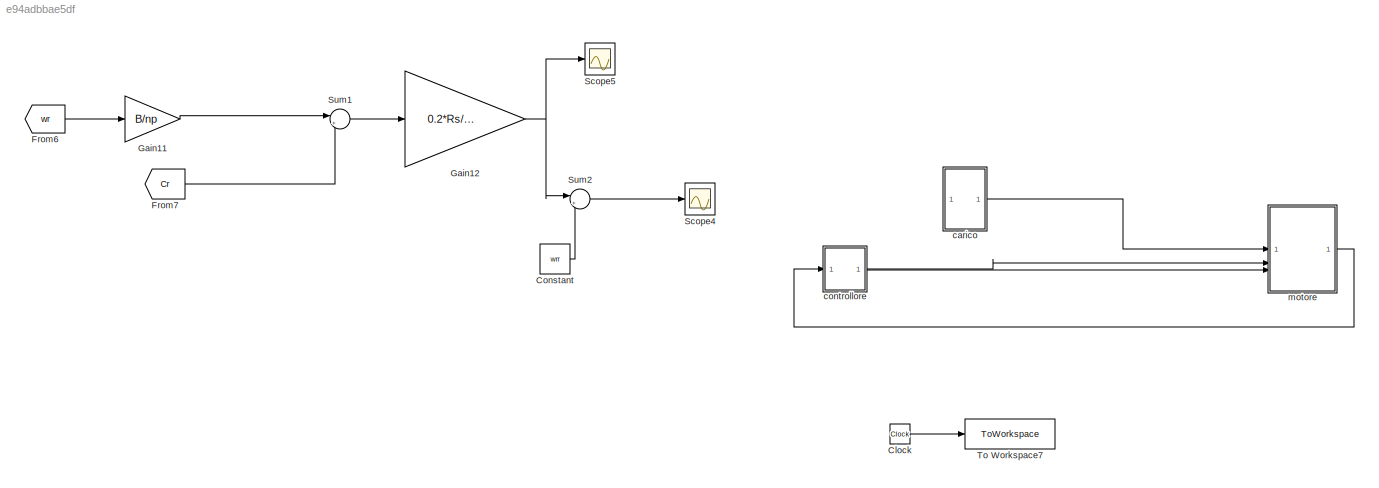
MODEL slx_e94adbbae5df
KIND model
CONFIG AbsTol = auto
CONFIG EnableMultiTasking = off
CONFIG FixedStep = 1e-4
CONFIG MaxStep = auto
CONFIG MinStep = auto
CONFIG RelTol = 1e-3
CONFIG SampleTimeConstraint = Unconstrained
CONFIG SolverName = FixedStepAuto
CONFIG StartTime = 0.0
CONFIG StopTime = 0.1
BLOCK [Clock] Clock
BLOCK [Constant] Constant
  Value = wrr
BLOCK [From] From6
  GotoTag = wr
  TagVisibility = global
BLOCK [From] From7
  GotoTag = Cr
  TagVisibility = global
BLOCK [Gain] Gain11
  Gain = B/np
BLOCK [Gain] Gain12
  Gain = 0.2*Rs/(Kc*PSIPM)
BLOCK [Scope] Scope4
  ActiveDisplayYMaximum = 1266.36927
  ActiveDisplayYMinimum = 1239.82875
  DataLoggingVariableName = ScopeData1
  Floating = off
  GraphicalSettings = {"Style":{"BackgroundColor":[0.12941176470588237,0.12941176470588237,0.12941176470588237],"AxesColor":[0.07058823529411765,0.07058823529411765,0.07058823529411765],"LabelsColor":[0.8509803921568627,0.8509803921568627,0.8509803921568627],"PreserveColors":false,"Visible":[true],"LineStyle":["-"],"LineWidth":[1.5],"BarWidth":[0.9],"LineColor":["auto"],"LineFaceAlpha":[1],"LineEdgeAlpha":[1],"Marker":...<+1963ch>
  MultipleDisplayCache = [{"MaxYLimMag":1266.36927,"MaxYLimReal":1266.36927,"MinYLimMag":1239.82875,"MinYLimReal":1239.82875,"PlotAsMagnitudePhase":false,"ShowGrid":true,"ShowLegend":false,"Title":"%<SignalLabel>","YLabel":""}]
  NumInputPorts = 1
  ScopeFrameLocation = window
  WasSavedAsWebScope = on
  WindowPosition = [488.000000,222.000000,560.000000,420.000000,]
BLOCK [Scope] Scope5
  ActiveDisplayYMaximum = 8.48624
  ActiveDisplayYMinimum = 7.17571
  DataLoggingVariableName = ScopeData2
  Floating = off
  GraphicalSettings = {"Style":{"BackgroundColor":[0.12941176470588237,0.12941176470588237,0.12941176470588237],"AxesColor":[0.07058823529411765,0.07058823529411765,0.07058823529411765],"LabelsColor":[0.8509803921568627,0.8509803921568627,0.8509803921568627],"PreserveColors":false,"Visible":[true],"LineStyle":["-"],"LineWidth":[1.5],"BarWidth":[0.9],"LineColor":["auto"],"LineFaceAlpha":[1],"LineEdgeAlpha":[1],"Marker":...<+1943ch>
  MultipleDisplayCache = [{"MaxYLimMag":8.48624,"MaxYLimReal":8.48624,"MinYLimMag":7.17571,"MinYLimReal":7.17571,"PlotAsMagnitudePhase":false,"ShowGrid":true,"ShowLegend":false,"Title":"%<SignalLabel>","YLabel":""}]
  NumInputPorts = 1
  ScopeFrameLocation = window
  WasSavedAsWebScope = on
  WindowPosition = [488.000000,222.000000,560.000000,420.000000,]
BLOCK [Sum] Sum1
  Inputs = |++
BLOCK [Sum] Sum2
  Inputs = |++
BLOCK [ToWorkspace] To Workspace7
  FixptAsFi = on
  MaxDataPoints = inf
  SampleTime = -1
  SaveFormat = Timeseries
  VariableName = ts
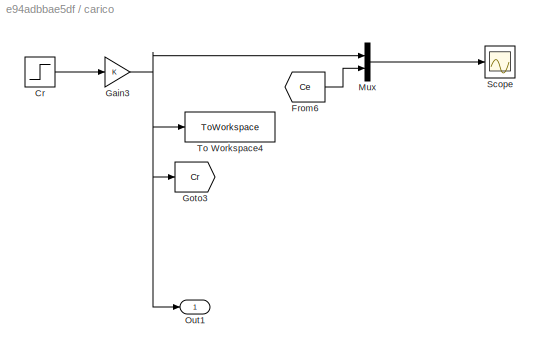
BLOCK [SubSystem] carico
BLOCK [Step] carico/Cr
  After = Crn
  SampleTime = 0
  Time = 0.05
BLOCK [From] carico/From6
  GotoTag = Ce
  TagVisibility = global
BLOCK [Gain] carico/Gain3
BLOCK [Goto] carico/Goto3
  GotoTag = Cr
  TagVisibility = global
BLOCK [Mux] carico/Mux
  DisplayOption = bar
  Inputs = 2
BLOCK [Outport] carico/Out1
BLOCK [Scope] carico/Scope
  ActiveDisplayYMaximum = 10.229860426392403
  ActiveDisplayYMinimum = -4.0916456084062247
  Floating = off
  GraphicalSettings = {"Style":{"BackgroundColor":[0.12941176470588237,0.12941176470588237,0.12941176470588237],"AxesColor":[0.07058823529411765,0.07058823529411765,0.07058823529411765],"LabelsColor":[0.8509803921568627,0.8509803921568627,0.8509803921568627],"PreserveColors":false,"Visible":[true,true],"LineStyle":["-","-"],"LineWidth":[1.5,1.5],"BarWidth":[0.9,0.9],"LineColor":["auto","auto"],"LineFaceAlpha":[1,1],"Li...<+2050ch>
  MultipleDisplayCache = [{"MaxYLimMag":10.229860426392403,"MaxYLimReal":10.229860426392403,"MinYLimMag":0,"MinYLimReal":-4.0916456084062247,"PlotAsMagnitudePhase":false,"ShowGrid":true,"ShowLegend":false,"Title":"%<SignalLabel>","YLabel":""}]
  NumInputPorts = 1
  ScopeFrameLocation = window
  WasSavedAsWebScope = on
  WindowPosition = [488.000000,222.000000,560.000000,420.000000,]
BLOCK [ToWorkspace] carico/To Workspace4
  FixptAsFi = on
  MaxDataPoints = inf
  SampleTime = -1
  SaveFormat = Timeseries
  VariableName = Cr
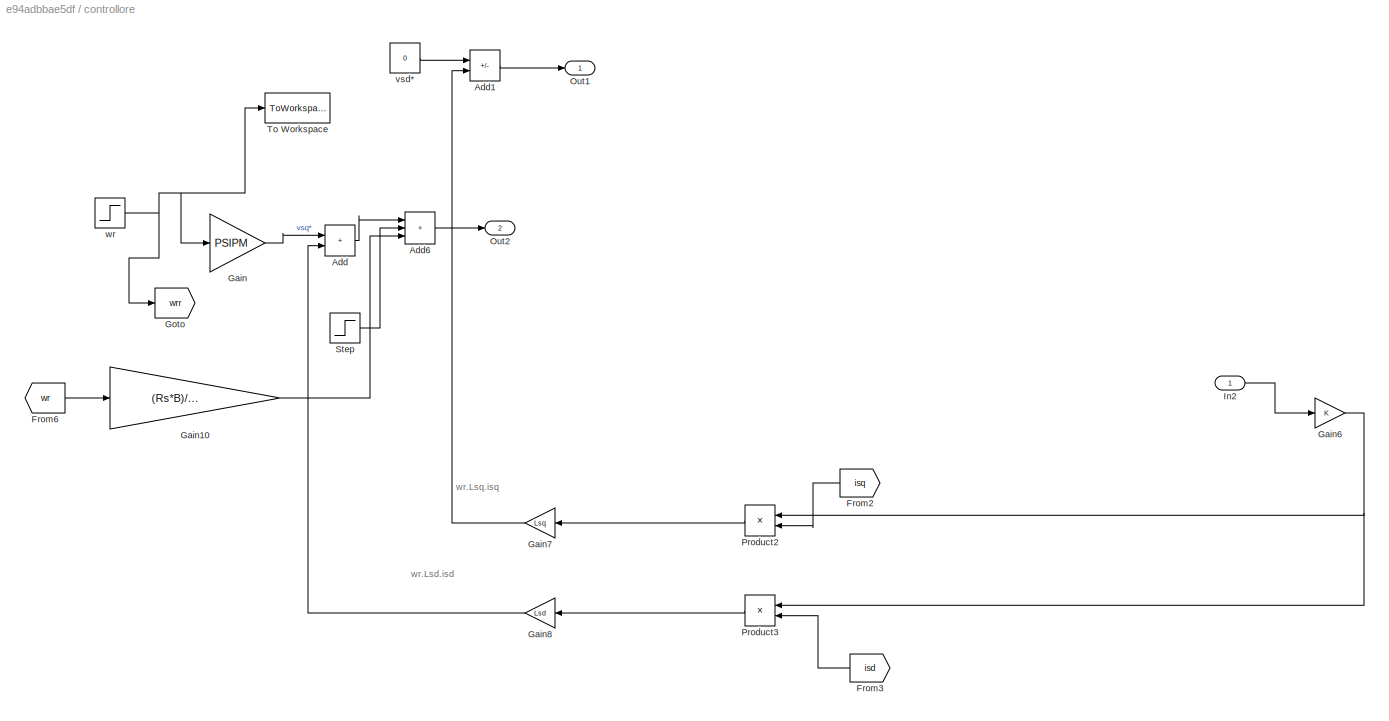
BLOCK [SubSystem] controllore
BLOCK [Sum] controllore/Add
  IconShape = rectangular
BLOCK [Sum] controllore/Add1
  IconShape = rectangular
  Inputs = +-
BLOCK [Sum] controllore/Add6
  IconShape = rectangular
  Inputs = +++
BLOCK [From] controllore/From2
  GotoTag = isq
  NameLocation = top
  TagVisibility = global
BLOCK [From] controllore/From3
  GotoTag = isd
  NameLocation = top
  TagVisibility = global
BLOCK [From] controllore/From6
  GotoTag = wr
  TagVisibility = global
BLOCK [Gain] controllore/Gain
  Gain = PSIPM
BLOCK [Gain] controllore/Gain10
  Gain = (Rs*B)/(np*Kc)
BLOCK [Gain] controllore/Gain6
BLOCK [Gain] controllore/Gain7
  Gain = Lsq
  NameLocation = top
BLOCK [Gain] controllore/Gain8
  Gain = Lsd
  NameLocation = top
BLOCK [Goto] controllore/Goto
  GotoTag = wrr
  TagVisibility = global
BLOCK [Inport] controllore/In2
BLOCK [Outport] controllore/Out1
BLOCK [Outport] controllore/Out2
  Port = 2
BLOCK [Product] controllore/Product2
  NameLocation = top
BLOCK [Product] controllore/Product3
  NameLocation = top
BLOCK [Step] controllore/Step
  After = Rs*Crn/Kc
  SampleTime = 0
  Time = 0.05
BLOCK [ToWorkspace] controllore/To Workspace
  FixptAsFi = on
  MaxDataPoints = inf
  SampleTime = -1
  SaveFormat = Timeseries
  VariableName = wrrif
BLOCK [Constant] controllore/vsd*
  Value = 0
BLOCK [Step] controllore/wr
  After = 1256.6
  SampleTime = 0
  Time = 0
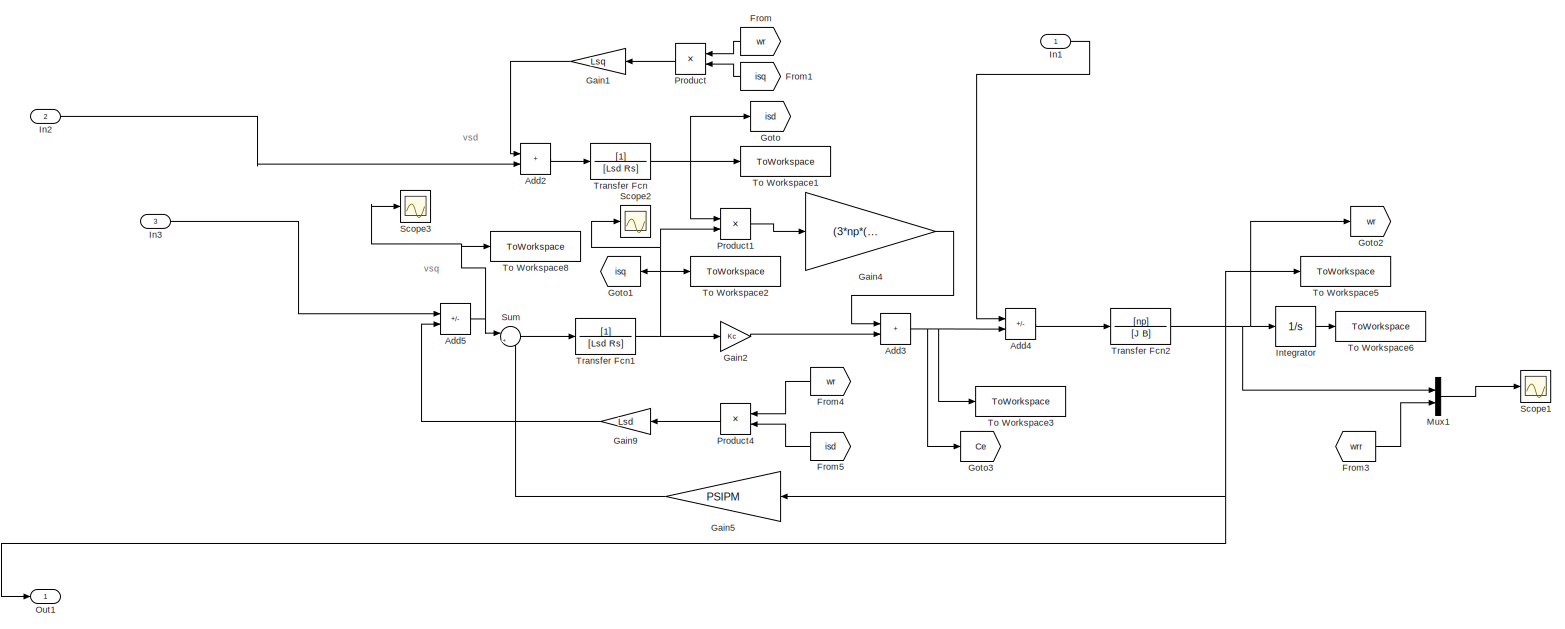
[diagram: motore - part 1/1, most of the canvas]
BLOCK [SubSystem] motore
BLOCK [Sum] motore/Add2
  IconShape = rectangular
BLOCK [Sum] motore/Add3
  IconShape = rectangular
BLOCK [Sum] motore/Add4
  IconShape = rectangular
  Inputs = -+
BLOCK [Sum] motore/Add5
  IconShape = rectangular
  Inputs = +-
BLOCK [From] motore/From
  GotoTag = wr
  NameLocation = top
  TagVisibility = global
BLOCK [From] motore/From1
  GotoTag = isq
  NameLocation = top
  TagVisibility = global
BLOCK [From] motore/From3
  GotoTag = wrr
  TagVisibility = global
BLOCK [From] motore/From4
  GotoTag = wr
  NameLocation = top
  TagVisibility = global
BLOCK [From] motore/From5
  GotoTag = isd
  NameLocation = top
  TagVisibility = global
BLOCK [Gain] motore/Gain1
  Gain = Lsq
  NameLocation = top
BLOCK [Gain] motore/Gain2
  Gain = Kc
BLOCK [Gain] motore/Gain4
  Gain = (3*np*(Lsd-Lsq))/2
BLOCK [Gain] motore/Gain5
  Gain = PSIPM
  NameLocation = top
BLOCK [Gain] motore/Gain9
  Gain = Lsd
  NameLocation = top
BLOCK [Goto] motore/Goto
  GotoTag = isd
  TagVisibility = global
BLOCK [Goto] motore/Goto1
  GotoTag = isq
  NameLocation = top
  TagVisibility = global
BLOCK [Goto] motore/Goto2
  GotoTag = wr
  TagVisibility = global
BLOCK [Goto] motore/Goto3
  GotoTag = Ce
  TagVisibility = global
BLOCK [Inport] motore/In1
BLOCK [Inport] motore/In2
  Port = 2
BLOCK [Inport] motore/In3
  Port = 3
BLOCK [Integrator] motore/Integrator
BLOCK [Mux] motore/Mux1
  DisplayOption = bar
  Inputs = 2
BLOCK [Outport] motore/Out1
BLOCK [Product] motore/Product
  NameLocation = top
BLOCK [Product] motore/Product1
BLOCK [Product] motore/Product4
  NameLocation = top
BLOCK [Scope] motore/Scope1
  ActiveDisplayYMaximum = 1845.53012242856
  ActiveDisplayYMinimum = -205.05890249206215
  DataLoggingVariableName = ScopeData1
  Floating = off
  GraphicalSettings = {"Style":{"BackgroundColor":[0.12941176470588237,0.12941176470588237,0.12941176470588237],"AxesColor":[0.07058823529411765,0.07058823529411765,0.07058823529411765],"LabelsColor":[0.8509803921568627,0.8509803921568627,0.8509803921568627],"PreserveColors":false,"Visible":[true,true],"LineStyle":["-","-"],"LineWidth":[1.5,1.5],"BarWidth":[0.9,0.9],"LineColor":["auto","auto"],"LineFaceAlpha":[1,1],"Li...<+2110ch>
  MultipleDisplayCache = [{"MaxYLimMag":1845.53012242856,"MaxYLimReal":1845.53012242856,"MinYLimMag":0,"MinYLimReal":-205.05890249206215,"PlotAsMagnitudePhase":false,"ShowGrid":true,"ShowLegend":false,"Title":"%<SignalLabel>","YLabel":""}]
  NumInputPorts = 1
  ScopeFrameLocation = window
  Visible = on
  WasSavedAsWebScope = on
  WindowPosition = [165.000000,250.000000,720.000000,482.000000,]
BLOCK [Scope] motore/Scope2
  ActiveDisplayYMaximum = 37.90229
  ActiveDisplayYMinimum = -15.15118
  DataLoggingVariableName = ScopeData1
  Floating = off
  GraphicalSettings = {"GraphicalSettings":{"LegacySettings":true,"Style":{"Style":{"AxesColor":"[0 0 0]","ChannelNames":[""],"ColorOrder":"[1 0.909803921568627 0.392156862745098;0.149019607843137 0.549019607843137 0.866666666666667;0.96078431372549 0.466666666666667 0.16078431372549;0.286274509803922 0.858823529411765 0.250980392156863;0.752941176470588 0.36078431372549 0.984313725490196;0.423529411764706 0.9568627450...<+467ch>
  MultipleDisplayCache = [{"MaxYLimMag":37.90229,"MaxYLimReal":37.90229,"MinYLimMag":0,"MinYLimReal":-15.15118,"PlotAsMagnitudePhase":false,"ShowGrid":true,"ShowLegend":false,"Title":"%<SignalLabel>","YLabel":""}]
  NumInputPorts = 1
  WasSavedAsWebScope = on
BLOCK [Scope] motore/Scope3
  ActiveDisplayYMaximum = 117.12449
  ActiveDisplayYMinimum = 112.64617
  DataLoggingVariableName = ScopeData2
  Floating = off
  GraphicalSettings = {"GraphicalSettings":{"LegacySettings":true,"Style":{"Style":{"AxesColor":"[0 0 0]","ChannelNames":[""],"ColorOrder":"[1 0.909803921568627 0.392156862745098;0.149019607843137 0.549019607843137 0.866666666666667;0.96078431372549 0.466666666666667 0.16078431372549;0.286274509803922 0.858823529411765 0.250980392156863;0.752941176470588 0.36078431372549 0.984313725490196;0.423529411764706 0.9568627450...<+432ch>
  MultipleDisplayCache = [{"MaxYLimMag":117.12449,"MaxYLimReal":117.12449,"MinYLimMag":112.64617,"MinYLimReal":112.64617,"PlotAsMagnitudePhase":false,"ShowGrid":true,"ShowLegend":false,"Title":"%<SignalLabel>","YLabel":""}]
  NumInputPorts = 1
  WasSavedAsWebScope = on
BLOCK [Sum] motore/Sum
  Inputs = |+-
BLOCK [ToWorkspace] motore/To Workspace1
  FixptAsFi = on
  MaxDataPoints = inf
  SampleTime = -1
  SaveFormat = Timeseries
  VariableName = isd
BLOCK [ToWorkspace] motore/To Workspace2
  FixptAsFi = on
  MaxDataPoints = inf
  SampleTime = -1
  SaveFormat = Timeseries
  VariableName = isq
BLOCK [ToWorkspace] motore/To Workspace3
  FixptAsFi = on
  MaxDataPoints = inf
  SampleTime = -1
  SaveFormat = Timeseries
  VariableName = Ce
BLOCK [ToWorkspace] motore/To Workspace5
  FixptAsFi = on
  MaxDataPoints = inf
  SampleTime = -1
  SaveFormat = Timeseries
  VariableName = wr
BLOCK [ToWorkspace] motore/To Workspace6
  FixptAsFi = on
  MaxDataPoints = inf
  SampleTime = -1
  SaveFormat = Timeseries
  VariableName = tetar
BLOCK [ToWorkspace] motore/To Workspace8
  FixptAsFi = on
  MaxDataPoints = inf
  SampleTime = -1
  SaveFormat = Timeseries
  VariableName = vsq1
BLOCK [TransferFcn] motore/Transfer Fcn
  Denominator = [Lsd Rs]
BLOCK [TransferFcn] motore/Transfer Fcn1
  Denominator = [Lsd Rs]
BLOCK [TransferFcn] motore/Transfer Fcn2
  Denominator = [J B]
  Numerator = [np]
ANNOTATION controllore: wr.Lsd.isd
ANNOTATION controllore: wr.Lsq.isq
ANNOTATION motore: vsd
ANNOTATION motore: vsq
LINE Clock:1 -> To Workspace7:1
LINE Constant:1 -> Sum2:2
LINE From6:1 -> Gain11:1
LINE From7:1 -> Sum1:2
LINE Gain11:1 -> Sum1:1
NET Gain12:1 -> Scope5:1, Sum2:1
LINE Sum1:1 -> Gain12:1
LINE Sum2:1 -> Scope4:1
LINE carico/Cr:1 -> carico/Gain3:1
LINE carico/From6:1 -> carico/Mux:2
NET carico/Gain3:1 -> carico/Goto3:1, carico/Mux:1, carico/Out1:1, carico/To Workspace4:1
LINE carico/Mux:1 -> carico/Scope:1
LINE carico:1 -> motore:1
LINE controllore/Add1:1 -> controllore/Out1:1
LINE controllore/Add6:1 -> controllore/Out2:1
LINE controllore/Add:1 -> controllore/Add6:1
LINE controllore/From2:1 -> controllore/Product2:2
LINE controllore/From3:1 -> controllore/Product3:2
LINE controllore/From6:1 -> controllore/Gain10:1
LINE controllore/Gain10:1 -> controllore/Add6:3
NET controllore/Gain6:1 -> controllore/Product2:1, controllore/Product3:1
LINE controllore/Gain7:1 -> controllore/Add1:2
LINE controllore/Gain8:1 -> controllore/Add:2
LINE controllore/Gain:1 -> controllore/Add:1
LINE controllore/In2:1 -> controllore/Gain6:1
LINE controllore/Product2:1 -> controllore/Gain7:1
LINE controllore/Product3:1 -> controllore/Gain8:1
LINE controllore/Step:1 -> controllore/Add6:2
LINE controllore/vsd*:1 -> controllore/Add1:1
NET controllore/wr:1 -> controllore/Gain:1, controllore/Goto:1, controllore/To Workspace:1
LINE controllore:1 -> motore:2
LINE controllore:2 -> motore:3
LINE motore/Add2:1 -> motore/Transfer Fcn:1
NET motore/Add3:1 -> motore/Add4:2, motore/Goto3:1, motore/To Workspace3:1
LINE motore/Add4:1 -> motore/Transfer Fcn2:1
NET motore/Add5:1 -> motore/Scope3:1, motore/Sum:1, motore/To Workspace8:1
LINE motore/From1:1 -> motore/Product:2
LINE motore/From3:1 -> motore/Mux1:2
LINE motore/From4:1 -> motore/Product4:1
LINE motore/From5:1 -> motore/Product4:2
LINE motore/From:1 -> motore/Product:1
LINE motore/Gain1:1 -> motore/Add2:1
LINE motore/Gain2:1 -> motore/Add3:2
LINE motore/Gain4:1 -> motore/Add3:1
LINE motore/Gain5:1 -> motore/Sum:2
LINE motore/Gain9:1 -> motore/Add5:2
LINE motore/In1:1 -> motore/Add4:1
LINE motore/In2:1 -> motore/Add2:2
LINE motore/In3:1 -> motore/Add5:1
LINE motore/Integrator:1 -> motore/To Workspace6:1
LINE motore/Mux1:1 -> motore/Scope1:1
LINE motore/Product1:1 -> motore/Gain4:1
LINE motore/Product4:1 -> motore/Gain9:1
LINE motore/Product:1 -> motore/Gain1:1
LINE motore/Sum:1 -> motore/Transfer Fcn1:1
NET motore/Transfer Fcn1:1 -> motore/Gain2:1, motore/Goto1:1, motore/Product1:2, motore/Scope2:1, motore/To Workspace2:1
NET motore/Transfer Fcn2:1 -> motore/Gain5:1, motore/Goto2:1, motore/Integrator:1, motore/Mux1:1, motore/Out1:1, motore/To Workspace5:1
NET motore/Transfer Fcn:1 -> motore/Goto:1, motore/Product1:1, motore/To Workspace1:1
LINE motore:1 -> controllore:1
note: NET lines group one-source signal fan-out (src -> all destinations, sorted); 1:1 wires keep LINE
